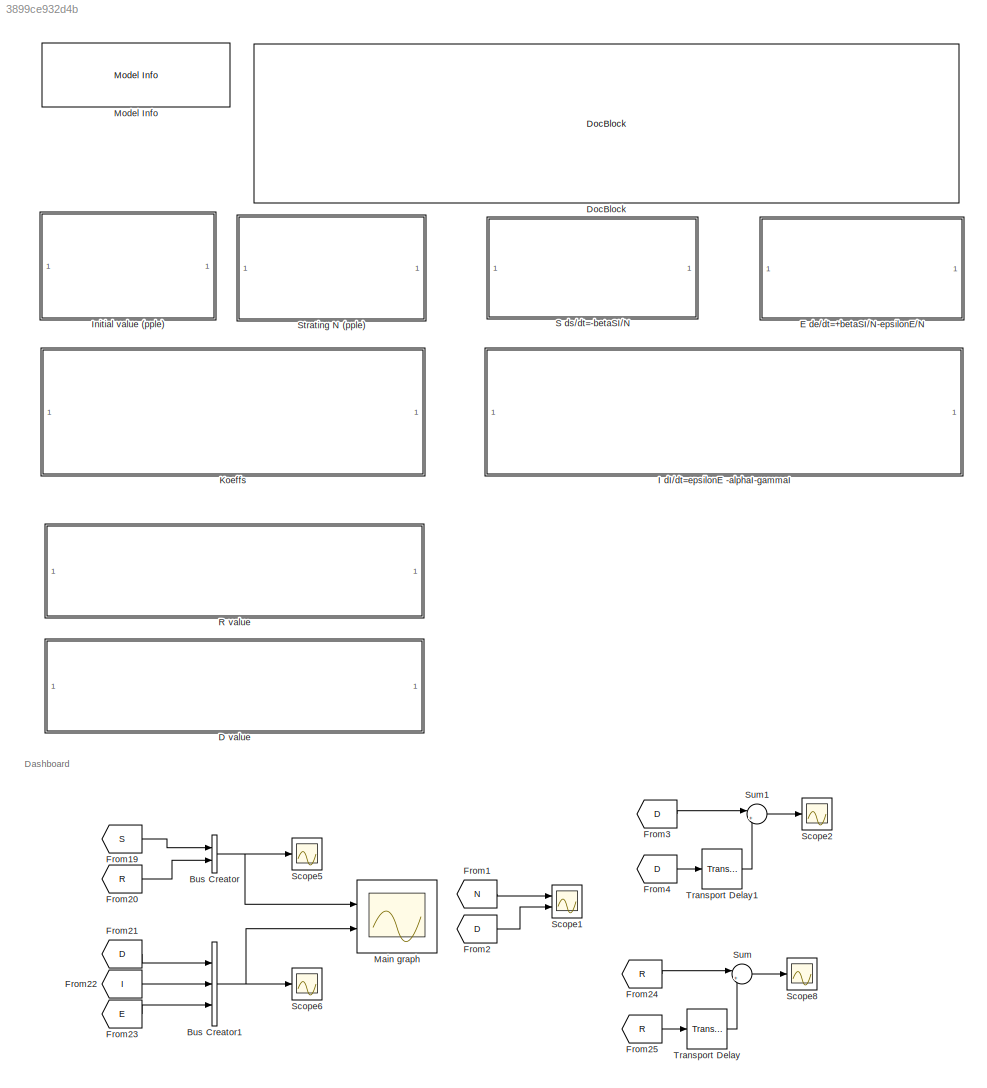
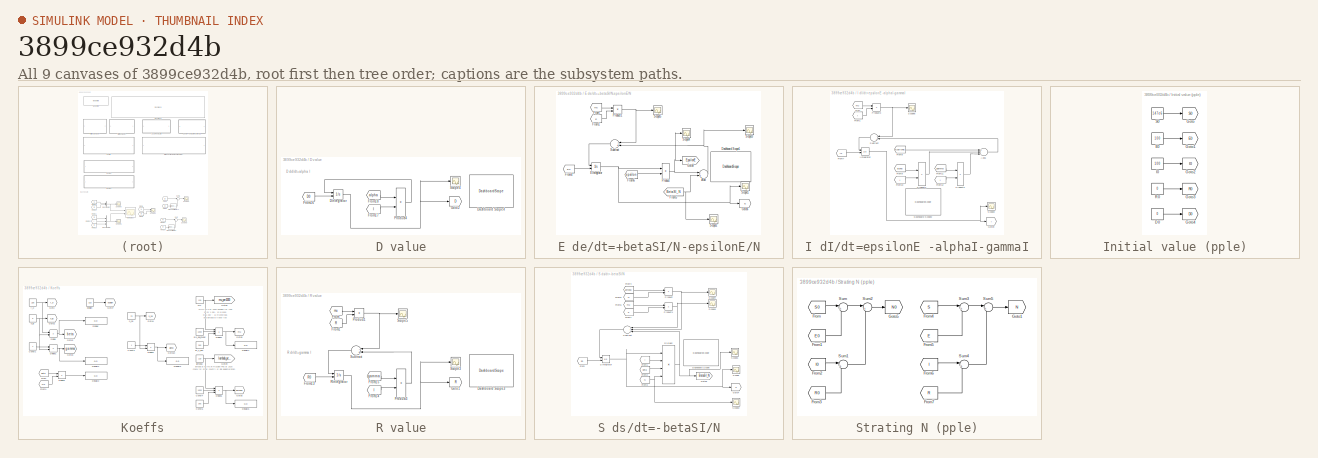
[diagram: thumbnail index - all 9 canvases of the model, root first then tree order]
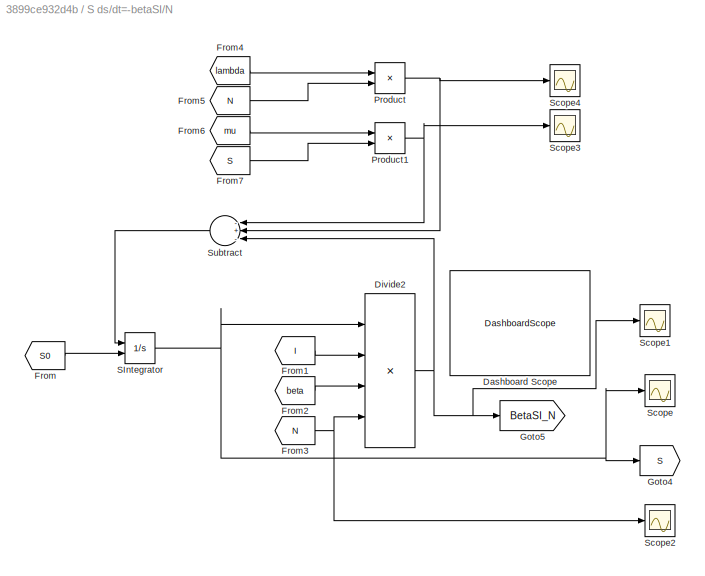
MODEL slx_3899ce932d4b
KIND model
CONFIG AbsTol = auto
CONFIG EnableMultiTasking = off
CONFIG FixedStep = 1/24
CONFIG MaxStep = auto
CONFIG MinStep = auto
CONFIG RelTol = 1e-6
CONFIG SampleTimeConstraint = Unconstrained
CONFIG Solver = VariableStepAuto
CONFIG SolverName = VariableStepAuto
CONFIG StartTime = 0.0
CONFIG StopTime = 365
BLOCK [BusCreator] Bus Creator
  DisplayOption = bar
  InheritFromInputs = on
  Inputs = 2
  Ports = [2, 1]
BLOCK [BusCreator] Bus Creator1
  DisplayOption = bar
  InheritFromInputs = on
  Inputs = 3
  Ports = [3, 1]
BLOCK [SubSystem] D value
  Ports = []
  RequestExecContextInheritance = off
BLOCK [Integrator] D value/DIntegrator
  InitialConditionSource = external
  Ports = [2, 1]
BLOCK [DashboardScope] D value/Dashboard Scope4
  Ymax = 150e6
BLOCK [From] D value/From16
  GotoTag = D0
  TagVisibility = global
BLOCK [From] D value/From17
  GotoTag = I
  TagVisibility = global
BLOCK [From] D value/From18
  GotoTag = alpha
  TagVisibility = global
BLOCK [Goto] D value/Goto2
  GotoTag = D
  TagVisibility = global
BLOCK [Product] D value/Product4
  InputSameDT = off
  Inputs = **
  OutDataTypeStr = Inherit: Inherit via internal rule
  Ports = [2, 1]
  RndMeth = Floor
  SaturateOnIntegerOverflow = off
BLOCK [Scope] D value/Scope4
  Floating = off
  NumInputPorts = 1
  Ports = [1]
  ScopeSpecificationString = Simulink.scopes.TimeScopeBlockCfg('CurrentConfiguration', extmgr.ConfigurationSet(extmgr.Configuration('Core','General UI',true),extmgr.Configuration('Core','Source UI',true),extmgr.Configuration('Sources','WiredSimulink',true,'DataLoggingVariableName','ScopeData4'),extmgr.Configuration('Visuals','Time Domain',true,'SerializedDisplays',{struct('MinYLimReal','-5731670.32772','MaxYLimReal','51585032...<+1494ch>
BLOCK [Reference] DocBlock  REF=simulink/Model-Wide
Utilities/DocBlock
  Ports = []
  SourceBlock = simulink/Model-Wide\nUtilities/DocBlock
  SourceProductBaseCode = SL
  SourceProductName = Simulink
  SourceType = DocBlock
  UserDataPersistent = on
BLOCK [SubSystem] E de//dt=+betaSI//N-epsilonE//N
  Ports = []
  RequestExecContextInheritance = off
BLOCK [Sum] E de//dt=+betaSI//N-epsilonE//N/Add
  InputSameDT = off
  Inputs = -+
  OutDataTypeStr = Inherit: Inherit via internal rule
  Ports = [2, 1]
  SaturateOnIntegerOverflow = off
BLOCK [DashboardScope] E de//dt=+betaSI//N-epsilonE//N/Dashboard Scope1
BLOCK [Integrator] E de//dt=+betaSI//N-epsilonE//N/EIntegrator
  InitialConditionSource = external
  Ports = [2, 1]
BLOCK [From] E de//dt=+betaSI//N-epsilonE//N/From
  GotoTag = mu
  TagVisibility = global
BLOCK [From] E de//dt=+betaSI//N-epsilonE//N/From1
  GotoTag = E
  TagVisibility = global
BLOCK [From] E de//dt=+betaSI//N-epsilonE//N/From4
  GotoTag = E0
  TagVisibility = global
BLOCK [From] E de//dt=+betaSI//N-epsilonE//N/From5
  GotoTag = BetaSI_N
  TagVisibility = global
BLOCK [From] E de//dt=+betaSI//N-epsilonE//N/From6
  GotoTag = epsilon
  TagVisibility = global
BLOCK [Goto] E de//dt=+betaSI//N-epsilonE//N/Goto6
  GotoTag = E
  TagVisibility = global
BLOCK [Goto] E de//dt=+betaSI//N-epsilonE//N/Goto8
  GotoTag = EpsilonE
  TagVisibility = global
BLOCK [Product] E de//dt=+betaSI//N-epsilonE//N/Product
  InputSameDT = off
  Inputs = **
  OutDataTypeStr = Inherit: Inherit via internal rule
  Ports = [2, 1]
  RndMeth = Floor
  SaturateOnIntegerOverflow = off
BLOCK [Product] E de//dt=+betaSI//N-epsilonE//N/Product1
  InputSameDT = off
  OutDataTypeStr = Inherit: Inherit via internal rule
  Ports = [2, 1]
  RndMeth = Floor
  SaturateOnIntegerOverflow = off
BLOCK [Scope] E de//dt=+betaSI//N-epsilonE//N/Scope1
  Floating = off
  NumInputPorts = 1
  Ports = [1]
  ScopeSpecificationString = Simulink.scopes.TimeScopeBlockCfg('CurrentConfiguration', extmgr.ConfigurationSet(extmgr.Configuration('Core','General UI',true),extmgr.Configuration('Core','Source UI',true),extmgr.Configuration('Sources','WiredSimulink',true,'DataLoggingVariableName','ScopeData1'),extmgr.Configuration('Visuals','Time Domain',true,'SerializedDisplays',{struct('MinYLimReal','-78351.64941','MaxYLimReal','705165.409...<+1474ch>
BLOCK [Scope] E de//dt=+betaSI//N-epsilonE//N/Scope2
  Floating = off
  NumInputPorts = 1
  Ports = [1]
  ScopeSpecificationString = Simulink.scopes.TimeScopeBlockCfg('CurrentConfiguration', extmgr.ConfigurationSet(extmgr.Configuration('Core','General UI',true),extmgr.Configuration('Core','Source UI',true),extmgr.Configuration('Sources','WiredSimulink',true,'DataLoggingVariableName','ScopeData4'),extmgr.Configuration('Visuals','Time Domain',true,'SerializedDisplays',{struct('MinYLimReal','-260952.34792','MaxYLimReal','2348570.7...<+1517ch>
BLOCK [Scope] E de//dt=+betaSI//N-epsilonE//N/Scope3
  Floating = off
  NumInputPorts = 1
  Ports = [1]
  ScopeSpecificationString = Simulink.scopes.TimeScopeBlockCfg('CurrentConfiguration', extmgr.ConfigurationSet(extmgr.Configuration('Core','General UI',true),extmgr.Configuration('Core','Source UI',true),extmgr.Configuration('Sources','WiredSimulink',true,'DataLoggingVariableName','ScopeData5'),extmgr.Configuration('Visuals','Time Domain',true,'SerializedDisplays',{struct('MinYLimReal','-27893.67248','MaxYLimReal','29326.4634...<+1501ch>
BLOCK [Scope] E de//dt=+betaSI//N-epsilonE//N/Scope4
  Floating = off
  NumInputPorts = 1
  Ports = [1]
  ScopeSpecificationString = Simulink.scopes.TimeScopeBlockCfg('CurrentConfiguration', extmgr.ConfigurationSet(extmgr.Configuration('Core','General UI',true),extmgr.Configuration('Core','Source UI',true),extmgr.Configuration('Sources','WiredSimulink',true,'DataLoggingVariableName','ScopeData6'),extmgr.Configuration('Visuals','Time Domain',true,'SerializedDisplays',{struct('MinYLimReal','-260910.99253','MaxYLimReal','2348200.8...<+1517ch>
BLOCK [Scope] E de//dt=+betaSI//N-epsilonE//N/Scope5
  Floating = off
  NumInputPorts = 1
  Ports = [1]
  ScopeSpecificationString = Simulink.scopes.TimeScopeBlockCfg('CurrentConfiguration', extmgr.ConfigurationSet(extmgr.Configuration('Core','General UI',true),extmgr.Configuration('Core','Source UI',true),extmgr.Configuration('Sources','WiredSimulink',true,'DataLoggingVariableName','ScopeData3'),extmgr.Configuration('Visuals','Time Domain',true,'SerializedDisplays',{struct('MinYLimReal','-2.76923','MaxYLimReal','24.92311','YLa...<+1480ch>
BLOCK [Sum] E de//dt=+betaSI//N-epsilonE//N/Subtract
  InputSameDT = off
  Inputs = -+
  OutDataTypeStr = Inherit: Inherit via internal rule
  Ports = [2, 1]
  SaturateOnIntegerOverflow = off
BLOCK [From] From1
  GotoTag = N
  TagVisibility = global
BLOCK [From] From19
  GotoTag = S
  TagVisibility = global
BLOCK [From] From2
  GotoTag = D
  TagVisibility = global
BLOCK [From] From20
  GotoTag = R
  TagVisibility = global
BLOCK [From] From21
  GotoTag = D
  TagVisibility = global
BLOCK [From] From22
  GotoTag = I
  TagVisibility = global
BLOCK [From] From23
  GotoTag = E
  TagVisibility = global
BLOCK [From] From24
  GotoTag = R
  TagVisibility = global
BLOCK [From] From25
  GotoTag = R
  TagVisibility = global
BLOCK [From] From3
  GotoTag = D
  TagVisibility = global
BLOCK [From] From4
  GotoTag = D
  TagVisibility = global
BLOCK [SubSystem] I dI//dt=epsilonE -alphaI-gammaI
  Ports = []
  RequestExecContextInheritance = off
BLOCK [Sum] I dI//dt=epsilonE -alphaI-gammaI/Add1
  InputSameDT = off
  Inputs = +--
  OutDataTypeStr = Inherit: Inherit via internal rule
  Ports = [3, 1]
  SaturateOnIntegerOverflow = off
BLOCK [DashboardScope] I dI//dt=epsilonE -alphaI-gammaI/Dashboard Scope2
  Ymax = 150e6
BLOCK [From] I dI//dt=epsilonE -alphaI-gammaI/From
  GotoTag = mu
  TagVisibility = global
BLOCK [From] I dI//dt=epsilonE -alphaI-gammaI/From1
  GotoTag = I
  TagVisibility = global
BLOCK [From] I dI//dt=epsilonE -alphaI-gammaI/From10
  GotoTag = I
  TagVisibility = global
BLOCK [From] I dI//dt=epsilonE -alphaI-gammaI/From11
  GotoTag = gamma
  TagVisibility = global
BLOCK [From] I dI//dt=epsilonE -alphaI-gammaI/From12
  GotoTag = I
  TagVisibility = global
BLOCK [From] I dI//dt=epsilonE -alphaI-gammaI/From7
  GotoTag = I0
  TagVisibility = global
BLOCK [From] I dI//dt=epsilonE -alphaI-gammaI/From8
  GotoTag = EpsilonE
  TagVisibility = global
BLOCK [From] I dI//dt=epsilonE -alphaI-gammaI/From9
  GotoTag = alpha
  TagVisibility = global
BLOCK [Goto] I dI//dt=epsilonE -alphaI-gammaI/Goto9
  GotoTag = I
  TagVisibility = global
BLOCK [Integrator] I dI//dt=epsilonE -alphaI-gammaI/IIntegrator
  InitialConditionSource = external
  Ports = [2, 1]
BLOCK [Product] I dI//dt=epsilonE -alphaI-gammaI/Product1
  InputSameDT = off
  Inputs = **
  OutDataTypeStr = Inherit: Inherit via internal rule
  Ports = [2, 1]
  RndMeth = Floor
  SaturateOnIntegerOverflow = off
BLOCK [Product] I dI//dt=epsilonE -alphaI-gammaI/Product2
  InputSameDT = off
  Inputs = **
  OutDataTypeStr = Inherit: Inherit via internal rule
  Ports = [2, 1]
  RndMeth = Floor
  SaturateOnIntegerOverflow = off
BLOCK [Product] I dI//dt=epsilonE -alphaI-gammaI/Product3
  InputSameDT = off
  OutDataTypeStr = Inherit: Inherit via internal rule
  Ports = [2, 1]
  RndMeth = Floor
  SaturateOnIntegerOverflow = off
BLOCK [Scope] I dI//dt=epsilonE -alphaI-gammaI/Scope2
  Floating = off
  NumInputPorts = 1
  Ports = [1]
  ScopeSpecificationString = Simulink.scopes.TimeScopeBlockCfg('CurrentConfiguration', extmgr.ConfigurationSet(extmgr.Configuration('Core','General UI',true),extmgr.Configuration('Core','Source UI',true),extmgr.Configuration('Sources','WiredSimulink',true,'DataLoggingVariableName','ScopeData2'),extmgr.Configuration('Visuals','Time Domain',true,'SerializedDisplays',{struct('MinYLimReal','-950905.16711','MaxYLimReal','8558144.5...<+1486ch>
BLOCK [Scope] I dI//dt=epsilonE -alphaI-gammaI/Scope5
  Floating = off
  NumInputPorts = 1
  Ports = [1]
  ScopeSpecificationString = Simulink.scopes.TimeScopeBlockCfg('CurrentConfiguration', extmgr.ConfigurationSet(extmgr.Configuration('Core','General UI',true),extmgr.Configuration('Core','Source UI',true),extmgr.Configuration('Sources','WiredSimulink',true,'DataLoggingVariableName','ScopeData4'),extmgr.Configuration('Visuals','Time Domain',true,'SerializedDisplays',{struct('MinYLimReal','-33.58911','MaxYLimReal','302.30188','Y...<+1486ch>
BLOCK [Sum] I dI//dt=epsilonE -alphaI-gammaI/Subtract
  InputSameDT = off
  Inputs = -+
  OutDataTypeStr = Inherit: Inherit via internal rule
  Ports = [2, 1]
  SaturateOnIntegerOverflow = off
BLOCK [SubSystem] Initial value (pple)
  Ports = []
  RequestExecContextInheritance = off
BLOCK [Constant] Initial value (pple)/D0
  Value = 0
BLOCK [Constant] Initial value (pple)/E0
  Value = 100
BLOCK [Goto] Initial value (pple)/Goto
  GotoTag = S0
  TagVisibility = global
BLOCK [Goto] Initial value (pple)/Goto1
  GotoTag = E0
  TagVisibility = global
BLOCK [Goto] Initial value (pple)/Goto2
  GotoTag = I0
  TagVisibility = global
BLOCK [Goto] Initial value (pple)/Goto3
  GotoTag = R0
  TagVisibility = global
BLOCK [Goto] Initial value (pple)/Goto4
  GotoTag = D0
  TagVisibility = global
BLOCK [Constant] Initial value (pple)/I0
  Value = 100
BLOCK [Constant] Initial value (pple)/R0
  Value = 0
BLOCK [Constant] Initial value (pple)/S0
  Value = 147e6
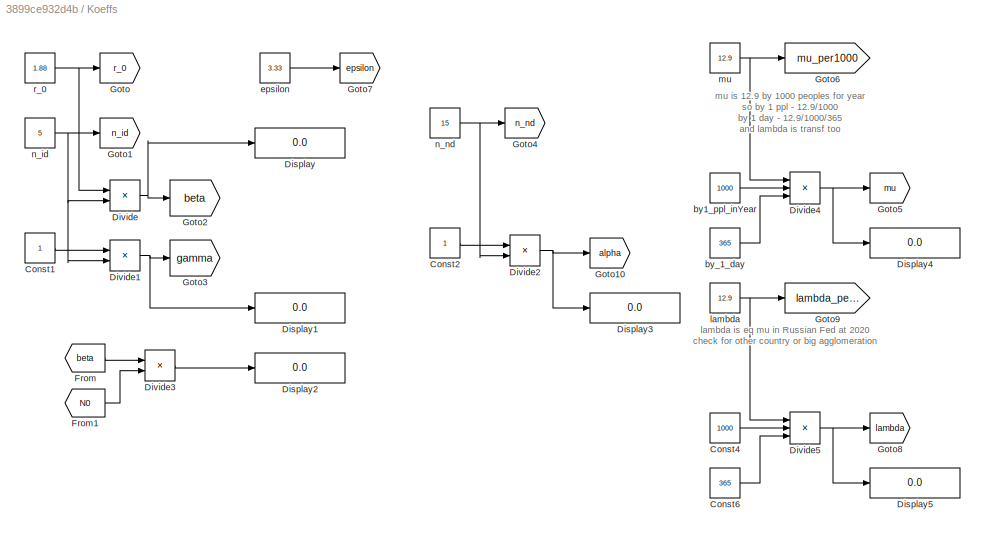
BLOCK [SubSystem] Koeffs
  Ports = []
  RequestExecContextInheritance = off
BLOCK [Constant] Koeffs/Const1
BLOCK [Constant] Koeffs/Const2
BLOCK [Constant] Koeffs/Const4
  Value = 1000
BLOCK [Constant] Koeffs/Const6
  Value = 365
BLOCK [Display] Koeffs/Display
  Decimation = 1
  Ports = [1]
BLOCK [Display] Koeffs/Display1
  Decimation = 1
  Ports = [1]
BLOCK [Display] Koeffs/Display2
  Decimation = 1
  Ports = [1]
BLOCK [Display] Koeffs/Display3
  Decimation = 1
  Ports = [1]
BLOCK [Display] Koeffs/Display4
  Decimation = 1
  Ports = [1]
BLOCK [Display] Koeffs/Display5
  Decimation = 1
  Ports = [1]
BLOCK [Product] Koeffs/Divide
  InputSameDT = off
  Inputs = */
  OutDataTypeStr = Inherit: Inherit via internal rule
  Ports = [2, 1]
  RndMeth = Floor
  SaturateOnIntegerOverflow = off
BLOCK [Product] Koeffs/Divide1
  InputSameDT = off
  Inputs = */
  OutDataTypeStr = Inherit: Inherit via internal rule
  Ports = [2, 1]
  RndMeth = Floor
  SaturateOnIntegerOverflow = off
BLOCK [Product] Koeffs/Divide2
  InputSameDT = off
  Inputs = */
  OutDataTypeStr = Inherit: Inherit via internal rule
  Ports = [2, 1]
  RndMeth = Floor
  SaturateOnIntegerOverflow = off
BLOCK [Product] Koeffs/Divide3
  InputSameDT = off
  Inputs = */
  OutDataTypeStr = Inherit: Inherit via internal rule
  Ports = [2, 1]
  RndMeth = Floor
  SaturateOnIntegerOverflow = off
BLOCK [Product] Koeffs/Divide4
  InputSameDT = off
  Inputs = *//
  OutDataTypeStr = Inherit: Inherit via internal rule
  Ports = [3, 1]
  RndMeth = Floor
  SaturateOnIntegerOverflow = off
BLOCK [Product] Koeffs/Divide5
  InputSameDT = off
  Inputs = *//
  OutDataTypeStr = Inherit: Inherit via internal rule
  Ports = [3, 1]
  RndMeth = Floor
  SaturateOnIntegerOverflow = off
BLOCK [From] Koeffs/From
  GotoTag = beta
  TagVisibility = global
BLOCK [From] Koeffs/From1
  GotoTag = N0
  TagVisibility = global
BLOCK [Goto] Koeffs/Goto
  GotoTag = r_0
  TagVisibility = global
BLOCK [Goto] Koeffs/Goto1
  GotoTag = n_id
  TagVisibility = global
BLOCK [Goto] Koeffs/Goto10
  GotoTag = alpha
  TagVisibility = global
BLOCK [Goto] Koeffs/Goto2
  GotoTag = beta
  TagVisibility = global
BLOCK [Goto] Koeffs/Goto3
  GotoTag = gamma
  TagVisibility = global
BLOCK [Goto] Koeffs/Goto4
  GotoTag = n_nd
  TagVisibility = global
BLOCK [Goto] Koeffs/Goto5
  GotoTag = mu
  TagVisibility = global
BLOCK [Goto] Koeffs/Goto6
  GotoTag = mu_per1000
  TagVisibility = global
BLOCK [Goto] Koeffs/Goto7
  GotoTag = epsilon
  TagVisibility = global
BLOCK [Goto] Koeffs/Goto8
  GotoTag = lambda
  TagVisibility = global
BLOCK [Goto] Koeffs/Goto9
  GotoTag = lambda_per1000
  TagVisibility = global
BLOCK [Constant] Koeffs/by1_ppl_inYear
  Value = 1000
BLOCK [Constant] Koeffs/by_1_day
  Value = 365
BLOCK [Constant] Koeffs/epsilon
  Value = 3.33
BLOCK [Constant] Koeffs/lambda
  Value = 12.9
BLOCK [Constant] Koeffs/mu
  Value = 12.9
BLOCK [Constant] Koeffs/n_id
  Value = 5
BLOCK [Constant] Koeffs/n_nd
  Value = 15
BLOCK [Constant] Koeffs/r_0
  Value = 1.88
BLOCK [Scope] Main graph
  Floating = off
  NumInputPorts = 2
  Ports = [2]
  ScopeSpecificationString = Simulink.scopes.TimeScopeBlockCfg('CurrentConfiguration', extmgr.ConfigurationSet(extmgr.Configuration('Core','General UI',true),extmgr.Configuration('Core','Source UI',true),extmgr.Configuration('Sources','WiredSimulink',true,'DataLoggingVariableName','ScopeData7'),extmgr.Configuration('Visuals','Time Domain',true,'SerializedDisplays',{struct('MinYLimReal','15976493.36283','MaxYLimReal','76955475...<+2136ch>
BLOCK [Reference] Model Info  REF=simulink/Model-Wide
Utilities/Model Info
  Ports = []
  SourceBlock = simulink/Model-Wide\nUtilities/Model Info
  SourceProductBaseCode = SL
  SourceProductName = Simulink
  SourceType = CMBlock
BLOCK [SubSystem] R value
  Ports = []
  RequestExecContextInheritance = off
BLOCK [DashboardScope] R value/Dashboard Scope3
BLOCK [From] R value/From
  GotoTag = mu
  TagVisibility = global
BLOCK [From] R value/From1
  GotoTag = R
  TagVisibility = global
BLOCK [From] R value/From13
  GotoTag = R0
  TagVisibility = global
BLOCK [From] R value/From14
  GotoTag = I
  TagVisibility = global
BLOCK [From] R value/From15
  GotoTag = gamma
  TagVisibility = global
BLOCK [Goto] R value/Goto1
  GotoTag = R
  TagVisibility = global
BLOCK [Product] R value/Product1
  InputSameDT = off
  OutDataTypeStr = Inherit: Inherit via internal rule
  Ports = [2, 1]
  RndMeth = Floor
  SaturateOnIntegerOverflow = off
BLOCK [Product] R value/Product3
  InputSameDT = off
  Inputs = **
  OutDataTypeStr = Inherit: Inherit via internal rule
  Ports = [2, 1]
  RndMeth = Floor
  SaturateOnIntegerOverflow = off
BLOCK [Integrator] R value/RIntegrator
  InitialConditionSource = external
  Ports = [2, 1]
BLOCK [Scope] R value/Scope3
  Floating = off
  NumInputPorts = 1
  Ports = [1]
  ScopeSpecificationString = Simulink.scopes.TimeScopeBlockCfg('CurrentConfiguration', extmgr.ConfigurationSet(extmgr.Configuration('Core','General UI',true),extmgr.Configuration('Core','Source UI',true),extmgr.Configuration('Sources','WiredSimulink',true,'DataLoggingVariableName','ScopeData3'),extmgr.Configuration('Visuals','Time Domain',true,'SerializedDisplays',{struct('MinYLimReal','-14355695.80734','MaxYLimReal','1292012...<+1502ch>
BLOCK [Scope] R value/Scope5
  Floating = off
  NumInputPorts = 1
  Ports = [1]
  ScopeSpecificationString = Simulink.scopes.TimeScopeBlockCfg('CurrentConfiguration', extmgr.ConfigurationSet(extmgr.Configuration('Core','General UI',true),extmgr.Configuration('Core','Source UI',true),extmgr.Configuration('Sources','WiredSimulink',true,'DataLoggingVariableName','ScopeData5'),extmgr.Configuration('Visuals','Time Domain',true,'SerializedDisplays',{struct('MinYLimReal','-291.48677','MaxYLimReal','2623.38096',...<+1494ch>
BLOCK [Sum] R value/Subtract
  InputSameDT = off
  Inputs = -+
  OutDataTypeStr = Inherit: Inherit via internal rule
  Ports = [2, 1]
  SaturateOnIntegerOverflow = off
BLOCK [SubSystem] S ds//dt=-betaSI//N
  Ports = []
  RequestExecContextInheritance = off
BLOCK [DashboardScope] S ds//dt=-betaSI//N/Dashboard Scope
  Ymax = 150e6
BLOCK [Product] S ds//dt=-betaSI//N/Divide2
  InputSameDT = off
  Inputs = ***/
  OutDataTypeStr = Inherit: Inherit via internal rule
  Ports = [4, 1]
  RndMeth = Floor
  SaturateOnIntegerOverflow = off
BLOCK [From] S ds//dt=-betaSI//N/From
  GotoTag = S0
  TagVisibility = global
BLOCK [From] S ds//dt=-betaSI//N/From1
  GotoTag = I
  TagVisibility = global
BLOCK [From] S ds//dt=-betaSI//N/From2
  GotoTag = beta
  TagVisibility = global
BLOCK [From] S ds//dt=-betaSI//N/From3
  GotoTag = N
  TagVisibility = global
BLOCK [From] S ds//dt=-betaSI//N/From4
  GotoTag = lambda
  TagVisibility = global
BLOCK [From] S ds//dt=-betaSI//N/From5
  GotoTag = N
  TagVisibility = global
BLOCK [From] S ds//dt=-betaSI//N/From6
  GotoTag = mu
  TagVisibility = global
BLOCK [From] S ds//dt=-betaSI//N/From7
  GotoTag = S
  TagVisibility = global
BLOCK [Goto] S ds//dt=-betaSI//N/Goto4
  GotoTag = S
  TagVisibility = global
BLOCK [Goto] S ds//dt=-betaSI//N/Goto5
  GotoTag = BetaSI_N
  TagVisibility = global
BLOCK [Product] S ds//dt=-betaSI//N/Product
  InputSameDT = off
  OutDataTypeStr = Inherit: Inherit via internal rule
  Ports = [2, 1]
  RndMeth = Floor
  SaturateOnIntegerOverflow = off
BLOCK [Product] S ds//dt=-betaSI//N/Product1
  InputSameDT = off
  OutDataTypeStr = Inherit: Inherit via internal rule
  Ports = [2, 1]
  RndMeth = Floor
  SaturateOnIntegerOverflow = off
BLOCK [Integrator] S ds//dt=-betaSI//N/SIntegrator
  InitialConditionSource = external
  Ports = [2, 1]
BLOCK [Scope] S ds//dt=-betaSI//N/Scope
  Floating = off
  NumInputPorts = 1
  Ports = [1]
  ScopeSpecificationString = Simulink.scopes.TimeScopeBlockCfg('CurrentConfiguration', extmgr.ConfigurationSet(extmgr.Configuration('Core','General UI',true),extmgr.Configuration('Core','Source UI',true),extmgr.Configuration('Sources','WiredSimulink',true),extmgr.Configuration('Visuals','Time Domain',true,'SerializedDisplays',{struct('MinYLimReal','47937422.66117','MaxYLimReal','158006953.03765','YLabelReal','','MinYLimMag','...<+1414ch>
BLOCK [Scope] S ds//dt=-betaSI//N/Scope1
  Floating = off
  NumInputPorts = 1
  Ports = [1]
  ScopeSpecificationString = Simulink.scopes.TimeScopeBlockCfg('CurrentConfiguration', extmgr.ConfigurationSet(extmgr.Configuration('Core','General UI',true),extmgr.Configuration('Core','Source UI',true),extmgr.Configuration('Sources','WiredSimulink',true,'DataLoggingVariableName','ScopeData2'),extmgr.Configuration('Visuals','Time Domain',true,'SerializedDisplays',{struct('MinYLimReal','-260901.94537','MaxYLimReal','2348117.1...<+1463ch>
BLOCK [Scope] S ds//dt=-betaSI//N/Scope2
  Floating = off
  NumInputPorts = 1
  Ports = [1]
  ScopeSpecificationString = Simulink.scopes.TimeScopeBlockCfg('CurrentConfiguration', extmgr.ConfigurationSet(extmgr.Configuration('Core','General UI',true),extmgr.Configuration('Core','Source UI',true),extmgr.Configuration('Sources','WiredSimulink',true,'DataLoggingVariableName','ScopeData3'),extmgr.Configuration('Visuals','Time Domain',true,'SerializedDisplays',{struct('MinYLimReal','122168575.09142','MaxYLimReal','1497592...<+1450ch>
BLOCK [Scope] S ds//dt=-betaSI//N/Scope3
  Floating = off
  NumInputPorts = 1
  Ports = [1]
  ScopeSpecificationString = Simulink.scopes.TimeScopeBlockCfg('CurrentConfiguration', extmgr.ConfigurationSet(extmgr.Configuration('Core','General UI',true),extmgr.Configuration('Core','Source UI',true),extmgr.Configuration('Sources','WiredSimulink',true,'DataLoggingVariableName','ScopeData1'),extmgr.Configuration('Visuals','Time Domain',true,'SerializedDisplays',{struct('MinYLimReal','1694.22672','MaxYLimReal','5584.35533',...<+1444ch>
BLOCK [Scope] S ds//dt=-betaSI//N/Scope4
  Floating = off
  NumInputPorts = 1
  Ports = [1]
  ScopeSpecificationString = Simulink.scopes.TimeScopeBlockCfg('CurrentConfiguration', extmgr.ConfigurationSet(extmgr.Configuration('Core','General UI',true),extmgr.Configuration('Core','Source UI',true),extmgr.Configuration('Sources','WiredSimulink',true,'DataLoggingVariableName','ScopeData2'),extmgr.Configuration('Visuals','Time Domain',true,'SerializedDisplays',{struct('MinYLimReal','4317.73868','MaxYLimReal','5292.86185',...<+1443ch>
BLOCK [Sum] S ds//dt=-betaSI//N/Subtract
  InputSameDT = off
  Inputs = -+-
  OutDataTypeStr = Inherit: Inherit via internal rule
  Ports = [3, 1]
  SaturateOnIntegerOverflow = off
BLOCK [Scope] Scope1
  Floating = off
  NumInputPorts = 2
  Ports = [2]
  ScopeSpecificationString = Simulink.scopes.TimeScopeBlockCfg('CurrentConfiguration', extmgr.ConfigurationSet(extmgr.Configuration('Core','General UI',true),extmgr.Configuration('Core','Source UI',true),extmgr.Configuration('Sources','WiredSimulink',true,'DataLoggingVariableName','ScopeData1'),extmgr.Configuration('Visuals','Time Domain',true,'SerializedDisplays',{struct('MinYLimReal','-18375025.00000','MaxYLimReal','1653752...<+1488ch>
BLOCK [Scope] Scope2
  Floating = off
  NumInputPorts = 1
  Ports = [1]
  ScopeSpecificationString = Simulink.scopes.TimeScopeBlockCfg('CurrentConfiguration', extmgr.ConfigurationSet(extmgr.Configuration('Core','General UI',true),extmgr.Configuration('Core','Source UI',true),extmgr.Configuration('Sources','WiredSimulink',true,'DataLoggingVariableName','ScopeData7'),extmgr.Configuration('Visuals','Time Domain',true,'SerializedDisplays',{struct('MinYLimReal','-63380.97086','MaxYLimReal','570428.726...<+1427ch>
BLOCK [Scope] Scope5
  Floating = off
  NumInputPorts = 1
  Ports = [1]
  ScopeSpecificationString = Simulink.scopes.TimeScopeBlockCfg('CurrentConfiguration', extmgr.ConfigurationSet(extmgr.Configuration('Core','General UI',true),extmgr.Configuration('Core','Source UI',true),extmgr.Configuration('Sources','WiredSimulink',true,'DataLoggingVariableName','ScopeData5'),extmgr.Configuration('Visuals','Time Domain',true,'SerializedDisplays',{struct('MinYLimReal','-18375000.00000','MaxYLimReal','1653750...<+1471ch>
BLOCK [Scope] Scope6
  Floating = off
  NumInputPorts = 1
  Ports = [1]
  ScopeSpecificationString = Simulink.scopes.TimeScopeBlockCfg('CurrentConfiguration', extmgr.ConfigurationSet(extmgr.Configuration('Core','General UI',true),extmgr.Configuration('Core','Source UI',true),extmgr.Configuration('Sources','WiredSimulink',true,'DataLoggingVariableName','ScopeData6'),extmgr.Configuration('Visuals','Time Domain',true,'SerializedDisplays',{struct('MinYLimReal','-2757985.03971','MaxYLimReal','24821863...<+1502ch>
BLOCK [Scope] Scope8
  Floating = off
  NumInputPorts = 1
  Ports = [1]
  ScopeSpecificationString = Simulink.scopes.TimeScopeBlockCfg('CurrentConfiguration', extmgr.ConfigurationSet(extmgr.Configuration('Core','General UI',true),extmgr.Configuration('Core','Source UI',true),extmgr.Configuration('Sources','WiredSimulink',true,'DataLoggingVariableName','ScopeData8'),extmgr.Configuration('Visuals','Time Domain',true,'SerializedDisplays',{struct('MinYLimReal','-190142.91257','MaxYLimReal','1711286.1...<+1433ch>
BLOCK [SubSystem] Strating N (pple)
  Ports = []
  RequestExecContextInheritance = off
BLOCK [From] Strating N (pple)/From
  GotoTag = S0
  TagVisibility = global
BLOCK [From] Strating N (pple)/From1
  GotoTag = E0
  TagVisibility = global
BLOCK [From] Strating N (pple)/From2
  GotoTag = I0
  TagVisibility = global
BLOCK [From] Strating N (pple)/From3
  GotoTag = R0
  TagVisibility = global
BLOCK [From] Strating N (pple)/From4
  GotoTag = S
  TagVisibility = global
BLOCK [From] Strating N (pple)/From5
  GotoTag = E
  TagVisibility = global
BLOCK [From] Strating N (pple)/From6
  GotoTag = I
  TagVisibility = global
BLOCK [From] Strating N (pple)/From7
  GotoTag = R
  TagVisibility = global
BLOCK [Goto] Strating N (pple)/Goto1
  GotoTag = N
  TagVisibility = global
BLOCK [Goto] Strating N (pple)/Goto5
  GotoTag = N0
  TagVisibility = global
BLOCK [Sum] Strating N (pple)/Sum
  IconShape = round
  InputSameDT = off
  Inputs = |++
  OutDataTypeStr = Inherit: Inherit via internal rule
  Ports = [2, 1]
  SaturateOnIntegerOverflow = off
BLOCK [Sum] Strating N (pple)/Sum1
  IconShape = round
  InputSameDT = off
  Inputs = |++
  OutDataTypeStr = Inherit: Inherit via internal rule
  Ports = [2, 1]
  SaturateOnIntegerOverflow = off
BLOCK [Sum] Strating N (pple)/Sum2
  IconShape = round
  InputSameDT = off
  Inputs = |++
  OutDataTypeStr = Inherit: Inherit via internal rule
  Ports = [2, 1]
  SaturateOnIntegerOverflow = off
BLOCK [Sum] Strating N (pple)/Sum3
  IconShape = round
  InputSameDT = off
  Inputs = |++
  OutDataTypeStr = Inherit: Inherit via internal rule
  Ports = [2, 1]
  SaturateOnIntegerOverflow = off
BLOCK [Sum] Strating N (pple)/Sum4
  IconShape = round
  InputSameDT = off
  Inputs = |++
  OutDataTypeStr = Inherit: Inherit via internal rule
  Ports = [2, 1]
  SaturateOnIntegerOverflow = off
BLOCK [Sum] Strating N (pple)/Sum5
  IconShape = round
  InputSameDT = off
  Inputs = |++
  OutDataTypeStr = Inherit: Inherit via internal rule
  Ports = [2, 1]
  SaturateOnIntegerOverflow = off
BLOCK [Sum] Sum
  IconShape = round
  InputSameDT = off
  Inputs = |+-
  OutDataTypeStr = Inherit: Inherit via internal rule
  Ports = [2, 1]
  SaturateOnIntegerOverflow = off
BLOCK [Sum] Sum1
  IconShape = round
  InputSameDT = off
  Inputs = |+-
  OutDataTypeStr = Inherit: Inherit via internal rule
  Ports = [2, 1]
  SaturateOnIntegerOverflow = off
BLOCK [TransportDelay] Transport Delay
  Ports = [1, 1]
BLOCK [TransportDelay] Transport Delay1
  Ports = [1, 1]
ANNOTATION (root): Dashboard
ANNOTATION D value: D dd/dt=alpha I
ANNOTATION Koeffs: lambda is eq mu in Russian Fed at 2020 check for other country or big agglomeration
ANNOTATION Koeffs: mu is 12.9 by 1000 peoples for year so by 1 ppl - 12.9/1000 by 1 day - 12.9/1000/365 and lambda is transf too
ANNOTATION R value: R dr/dt=gamma I
NET Bus Creator1:1 -> Main graph:2, Scope6:1
NET Bus Creator:1 -> Main graph:1, Scope5:1
NET D value/DIntegrator:1 -> D value/Goto2:1, D value/Scope4:1
LINE D value/From16:1 -> D value/DIntegrator:2
LINE D value/From17:1 -> D value/Product4:2
LINE D value/From18:1 -> D value/Product4:1
LINE D value/Product4:1 -> D value/DIntegrator:1
NET E de//dt=+betaSI//N-epsilonE//N/Add:1 -> E de//dt=+betaSI//N-epsilonE//N/Scope3:1, E de//dt=+betaSI//N-epsilonE//N/Subtract:2
NET E de//dt=+betaSI//N-epsilonE//N/EIntegrator:1 -> E de//dt=+betaSI//N-epsilonE//N/Goto6:1, E de//dt=+betaSI//N-epsilonE//N/Product:1, E de//dt=+betaSI//N-epsilonE//N/Scope1:1
LINE E de//dt=+betaSI//N-epsilonE//N/From1:1 -> E de//dt=+betaSI//N-epsilonE//N/Product1:2
LINE E de//dt=+betaSI//N-epsilonE//N/From4:1 -> E de//dt=+betaSI//N-epsilonE//N/EIntegrator:2
NET E de//dt=+betaSI//N-epsilonE//N/From5:1 -> E de//dt=+betaSI//N-epsilonE//N/Add:2, E de//dt=+betaSI//N-epsilonE//N/Scope2:1
LINE E de//dt=+betaSI//N-epsilonE//N/From6:1 -> E de//dt=+betaSI//N-epsilonE//N/Product:2
LINE E de//dt=+betaSI//N-epsilonE//N/From:1 -> E de//dt=+betaSI//N-epsilonE//N/Product1:1
NET E de//dt=+betaSI//N-epsilonE//N/Product1:1 -> E de//dt=+betaSI//N-epsilonE//N/Scope5:1, E de//dt=+betaSI//N-epsilonE//N/Subtract:1
NET E de//dt=+betaSI//N-epsilonE//N/Product:1 -> E de//dt=+betaSI//N-epsilonE//N/Add:1, E de//dt=+betaSI//N-epsilonE//N/Goto8:1, E de//dt=+betaSI//N-epsilonE//N/Scope4:1
LINE E de//dt=+betaSI//N-epsilonE//N/Subtract:1 -> E de//dt=+betaSI//N-epsilonE//N/EIntegrator:1
LINE From19:1 -> Bus Creator:1
LINE From1:1 -> Scope1:1
LINE From20:1 -> Bus Creator:2
LINE From21:1 -> Bus Creator1:1
LINE From22:1 -> Bus Creator1:2
LINE From23:1 -> Bus Creator1:3
LINE From24:1 -> Sum:1
LINE From25:1 -> Transport Delay:1
LINE From2:1 -> Scope1:2
LINE From3:1 -> Sum1:1
LINE From4:1 -> Transport Delay1:1
LINE I dI//dt=epsilonE -alphaI-gammaI/Add1:1 -> I dI//dt=epsilonE -alphaI-gammaI/Subtract:2
LINE I dI//dt=epsilonE -alphaI-gammaI/From10:1 -> I dI//dt=epsilonE -alphaI-gammaI/Product1:2
LINE I dI//dt=epsilonE -alphaI-gammaI/From11:1 -> I dI//dt=epsilonE -alphaI-gammaI/Product2:1
LINE I dI//dt=epsilonE -alphaI-gammaI/From12:1 -> I dI//dt=epsilonE -alphaI-gammaI/Product2:2
LINE I dI//dt=epsilonE -alphaI-gammaI/From1:1 -> I dI//dt=epsilonE -alphaI-gammaI/Product3:2
LINE I dI//dt=epsilonE -alphaI-gammaI/From7:1 -> I dI//dt=epsilonE -alphaI-gammaI/IIntegrator:2
LINE I dI//dt=epsilonE -alphaI-gammaI/From8:1 -> I dI//dt=epsilonE -alphaI-gammaI/Add1:1
LINE I dI//dt=epsilonE -alphaI-gammaI/From9:1 -> I dI//dt=epsilonE -alphaI-gammaI/Product1:1
LINE I dI//dt=epsilonE -alphaI-gammaI/From:1 -> I dI//dt=epsilonE -alphaI-gammaI/Product3:1
NET I dI//dt=epsilonE -alphaI-gammaI/IIntegrator:1 -> I dI//dt=epsilonE -alphaI-gammaI/Goto9:1, I dI//dt=epsilonE -alphaI-gammaI/Scope2:1
LINE I dI//dt=epsilonE -alphaI-gammaI/Product1:1 -> I dI//dt=epsilonE -alphaI-gammaI/Add1:2
LINE I dI//dt=epsilonE -alphaI-gammaI/Product2:1 -> I dI//dt=epsilonE -alphaI-gammaI/Add1:3
NET I dI//dt=epsilonE -alphaI-gammaI/Product3:1 -> I dI//dt=epsilonE -alphaI-gammaI/Scope5:1, I dI//dt=epsilonE -alphaI-gammaI/Subtract:1
LINE I dI//dt=epsilonE -alphaI-gammaI/Subtract:1 -> I dI//dt=epsilonE -alphaI-gammaI/IIntegrator:1
LINE Initial value (pple)/D0:1 -> Initial value (pple)/Goto4:1
LINE Initial value (pple)/E0:1 -> Initial value (pple)/Goto1:1
LINE Initial value (pple)/I0:1 -> Initial value (pple)/Goto2:1
LINE Initial value (pple)/R0:1 -> Initial value (pple)/Goto3:1
LINE Initial value (pple)/S0:1 -> Initial value (pple)/Goto:1
LINE Koeffs/Const1:1 -> Koeffs/Divide1:1
LINE Koeffs/Const2:1 -> Koeffs/Divide2:1
LINE Koeffs/Const4:1 -> Koeffs/Divide5:2
LINE Koeffs/Const6:1 -> Koeffs/Divide5:3
NET Koeffs/Divide1:1 -> Koeffs/Display1:1, Koeffs/Goto3:1
NET Koeffs/Divide2:1 -> Koeffs/Display3:1, Koeffs/Goto10:1
LINE Koeffs/Divide3:1 -> Koeffs/Display2:1
NET Koeffs/Divide4:1 -> Koeffs/Display4:1, Koeffs/Goto5:1
NET Koeffs/Divide5:1 -> Koeffs/Display5:1, Koeffs/Goto8:1
NET Koeffs/Divide:1 -> Koeffs/Display:1, Koeffs/Goto2:1
LINE Koeffs/From1:1 -> Koeffs/Divide3:2
LINE Koeffs/From:1 -> Koeffs/Divide3:1
LINE Koeffs/by1_ppl_inYear:1 -> Koeffs/Divide4:2
LINE Koeffs/by_1_day:1 -> Koeffs/Divide4:3
LINE Koeffs/epsilon:1 -> Koeffs/Goto7:1
NET Koeffs/lambda:1 -> Koeffs/Divide5:1, Koeffs/Goto9:1
NET Koeffs/mu:1 -> Koeffs/Divide4:1, Koeffs/Goto6:1
NET Koeffs/n_id:1 -> Koeffs/Divide1:2, Koeffs/Divide:2, Koeffs/Goto1:1
NET Koeffs/n_nd:1 -> Koeffs/Divide2:2, Koeffs/Goto4:1
NET Koeffs/r_0:1 -> Koeffs/Divide:1, Koeffs/Goto:1
LINE R value/From13:1 -> R value/RIntegrator:2
LINE R value/From14:1 -> R value/Product3:2
LINE R value/From15:1 -> R value/Product3:1
LINE R value/From1:1 -> R value/Product1:2
LINE R value/From:1 -> R value/Product1:1
NET R value/Product1:1 -> R value/Scope5:1, R value/Subtract:1
LINE R value/Product3:1 -> R value/Subtract:2
NET R value/RIntegrator:1 -> R value/Goto1:1, R value/Scope3:1
LINE R value/Subtract:1 -> R value/RIntegrator:1
NET S ds//dt=-betaSI//N/Divide2:1 -> S ds//dt=-betaSI//N/Goto5:1, S ds//dt=-betaSI//N/Scope1:1, S ds//dt=-betaSI//N/Subtract:3
LINE S ds//dt=-betaSI//N/From1:1 -> S ds//dt=-betaSI//N/Divide2:2
LINE S ds//dt=-betaSI//N/From2:1 -> S ds//dt=-betaSI//N/Divide2:3
NET S ds//dt=-betaSI//N/From3:1 -> S ds//dt=-betaSI//N/Divide2:4, S ds//dt=-betaSI//N/Scope2:1
LINE S ds//dt=-betaSI//N/From4:1 -> S ds//dt=-betaSI//N/Product:1
LINE S ds//dt=-betaSI//N/From5:1 -> S ds//dt=-betaSI//N/Product:2
LINE S ds//dt=-betaSI//N/From6:1 -> S ds//dt=-betaSI//N/Product1:1
LINE S ds//dt=-betaSI//N/From7:1 -> S ds//dt=-betaSI//N/Product1:2
LINE S ds//dt=-betaSI//N/From:1 -> S ds//dt=-betaSI//N/SIntegrator:2
NET S ds//dt=-betaSI//N/Product1:1 -> S ds//dt=-betaSI//N/Scope3:1, S ds//dt=-betaSI//N/Subtract:1
NET S ds//dt=-betaSI//N/Product:1 -> S ds//dt=-betaSI//N/Scope4:1, S ds//dt=-betaSI//N/Subtract:2
NET S ds//dt=-betaSI//N/SIntegrator:1 -> S ds//dt=-betaSI//N/Divide2:1, S ds//dt=-betaSI//N/Goto4:1, S ds//dt=-betaSI//N/Scope:1
LINE S ds//dt=-betaSI//N/Subtract:1 -> S ds//dt=-betaSI//N/SIntegrator:1
LINE Strating N (pple)/From1:1 -> Strating N (pple)/Sum:2
LINE Strating N (pple)/From2:1 -> Strating N (pple)/Sum1:1
LINE Strating N (pple)/From3:1 -> Strating N (pple)/Sum1:2
LINE Strating N (pple)/From4:1 -> Strating N (pple)/Sum3:1
LINE Strating N (pple)/From5:1 -> Strating N (pple)/Sum3:2
LINE Strating N (pple)/From6:1 -> Strating N (pple)/Sum4:1
LINE Strating N (pple)/From7:1 -> Strating N (pple)/Sum4:2
LINE Strating N (pple)/From:1 -> Strating N (pple)/Sum:1
LINE Strating N (pple)/Sum1:1 -> Strating N (pple)/Sum2:2
LINE Strating N (pple)/Sum2:1 -> Strating N (pple)/Goto5:1
LINE Strating N (pple)/Sum3:1 -> Strating N (pple)/Sum5:1
LINE Strating N (pple)/Sum4:1 -> Strating N (pple)/Sum5:2
LINE Strating N (pple)/Sum5:1 -> Strating N (pple)/Goto1:1
LINE Strating N (pple)/Sum:1 -> Strating N (pple)/Sum2:1
LINE Sum1:1 -> Scope2:1
LINE Sum:1 -> Scope8:1
LINE Transport Delay1:1 -> Sum1:2
LINE Transport Delay:1 -> Sum:2
note: NET lines group one-source signal fan-out (src -> all destinations, sorted); 1:1 wires keep LINE
